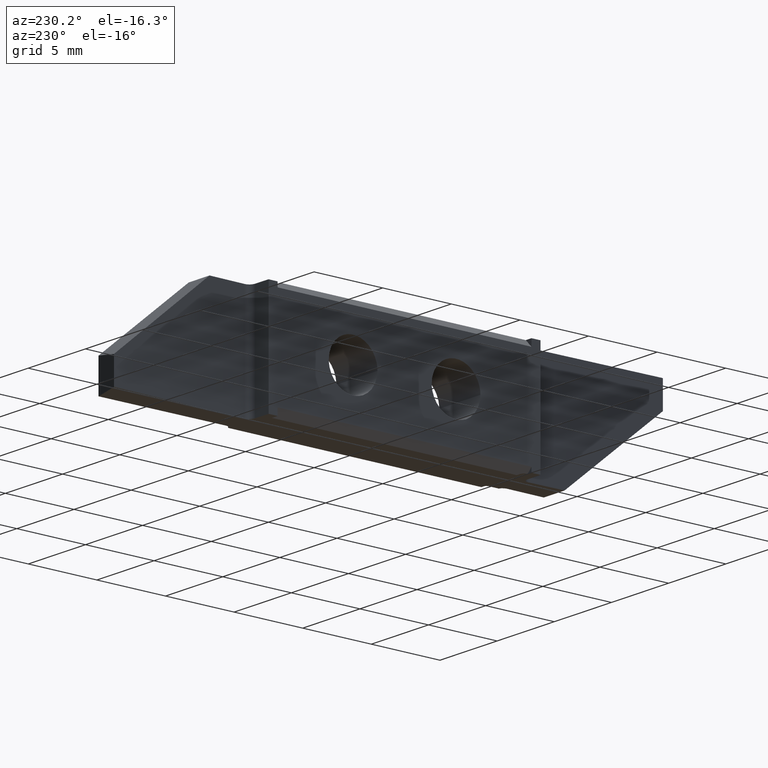
[diagram: clean part render]
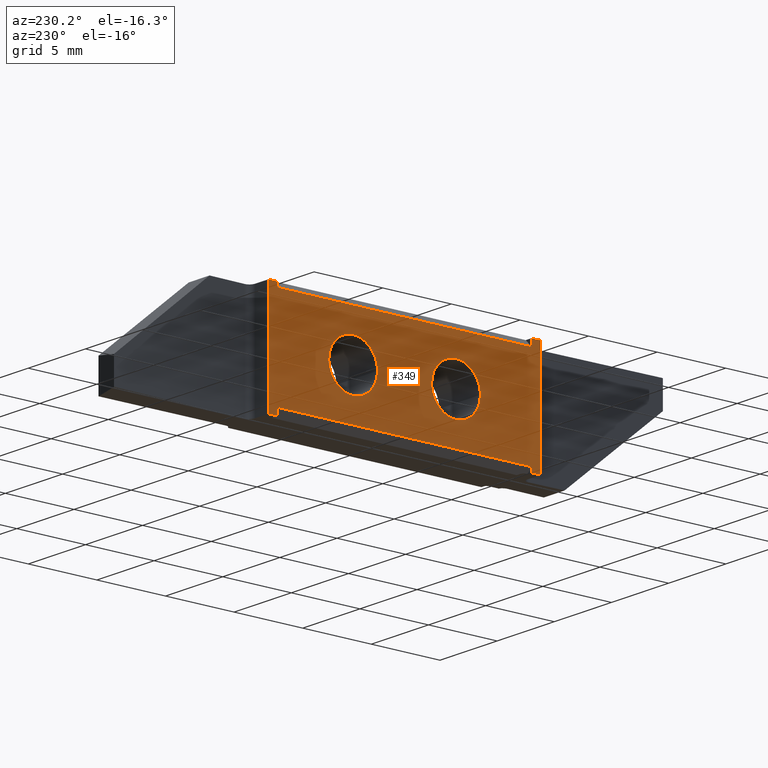
[diagram: same view with one face highlighted and labeled with its STEP entity id]
A machine part, auxiliary view. The second image highlights one B-rep face of the part: STEP entity #349.
In plain terms, the highlighted planar face has unit normal (1, 0, -0).
Its self-contained STEP definition (entity closure, byte-faithful):
#10=CARTESIAN_POINT('',(-3.183503075E-07,9.55,-3.));
#11=VERTEX_POINT('',#10);
#46=CARTESIAN_POINT('',(-3.183503075E-07,13.1,-3.));
#47=VERTEX_POINT('',#46);
#58=CARTESIAN_POINT('',(-3.183503075E-07,13.1,-3.));
#59=CARTESIAN_POINT('',(-1.299930425E-07,13.1,-1.225));
#60=CARTESIAN_POINT('',(-1.299930425E-07,11.325,-1.225));
#61=CARTESIAN_POINT('',(-1.299930425E-07,9.55,-1.225));
#62=CARTESIAN_POINT('',(-3.183503075E-07,9.55,-3.));
#63=(BOUNDED_CURVE()B_SPLINE_CURVE(2,(#58,#59,#60,#61,#62),.UNSPECIFIED.,.F.,.F.)B_SPLINE_CURVE_WITH_KNOTS((3,2,3),(0.,1.570796327,3.141592654),.UNSPECIFIED.)CURVE()GEOMETRIC_REPRESENTATION_ITEM()RATIONAL_B_SPLINE_CURVE((1.,0.7071067812,1.,0.7071067812,1.)
)REPRESENTATION_ITEM(''));
#64=EDGE_CURVE('',#47,#11,#63,.T.);
#85=CARTESIAN_POINT('',(-3.183503079E-07,7.575,-3.));
#86=DIRECTION('',(1.,0.,-1.061167691E-07));
#87=DIRECTION('',(1.061167691E-07,0.,1.));
#88=AXIS2_PLACEMENT_3D('',#85,#86,#87);
#89=PLANE('',#88);
#90=CARTESIAN_POINT('',(-7.268998686E-07,-1.675,-6.85));
#91=DIRECTION('',(1.06116769E-07,5.075305255E-15,1.));
#92=VECTOR('',#91,0.35);
#93=LINE('',#90,#92);
#94=CARTESIAN_POINT('',(-7.268998686E-07,-1.675,-6.85));
#95=VERTEX_POINT('',#94);
#96=CARTESIAN_POINT('',(-6.897589995E-07,-1.675,-6.5));
#97=VERTEX_POINT('',#96);
#98=EDGE_CURVE('',#95,#97,#93,.T.);
#99=ORIENTED_EDGE('Edge 81',*,*,#98,.F.);
#108=CARTESIAN_POINT('',(-6.897589995E-07,-1.675,-6.5));
#109=DIRECTION('',(0.,1.,-3.552713679E-15));
#110=VECTOR('',#109,18.5);
#111=LINE('',#108,#110);
#112=CARTESIAN_POINT('',(-6.897589995E-07,16.825,-6.5));
#113=VERTEX_POINT('',#112);
#114=EDGE_CURVE('',#97,#113,#111,.T.);
#115=ORIENTED_EDGE('Edge 86',*,*,#114,.F.);
#124=CARTESIAN_POINT('',(-7.42817384E-07,16.825,-7.));
#125=DIRECTION('',(1.06116769E-07,7.105427358E-15,1.));
#126=VECTOR('',#125,0.5);
#127=LINE('',#124,#126);
#128=CARTESIAN_POINT('',(-7.42817384E-07,16.825,-7.));
#129=VERTEX_POINT('',#128);
#130=EDGE_CURVE('',#129,#113,#127,.T.);
#131=ORIENTED_EDGE('Edge 91',*,*,#130,.T.);
#140=CARTESIAN_POINT('',(-7.42817384E-07,16.825,-7.));
#141=DIRECTION('',(0.,1.,2.708807625E-14));
#142=VECTOR('',#141,0.6557707615);
#143=LINE('',#140,#142);
#144=CARTESIAN_POINT('',(-7.42817384E-07,17.48077076,-7.));
#145=VERTEX_POINT('',#144);
#146=EDGE_CURVE('',#129,#145,#143,.T.);
#147=ORIENTED_EDGE('Edge 96',*,*,#146,.F.);
#156=CARTESIAN_POINT('',(9.019925277E-08,17.48077076,0.85));
#157=DIRECTION('',(-1.06116769E-07,2.715449946E-15,-1.));
#158=VECTOR('',#157,7.85);
#159=LINE('',#156,#158);
#160=CARTESIAN_POINT('',(9.019925277E-08,17.48077076,0.85));
#161=VERTEX_POINT('',#160);
#162=EDGE_CURVE('',#161,#145,#159,.T.);
#163=ORIENTED_EDGE('Edge 886',*,*,#162,.T.);
#172=CARTESIAN_POINT('',(9.019925277E-08,17.48077076,0.85));
#173=DIRECTION('',(0.,-1.,3.386009532E-15));
#174=VECTOR('',#173,0.6557707615);
#175=LINE('',#172,#174);
#176=CARTESIAN_POINT('',(9.01992528E-08,16.825,0.85));
#177=VERTEX_POINT('',#176);
#178=EDGE_CURVE('',#161,#177,#175,.T.);
#179=ORIENTED_EDGE('Edge 520',*,*,#178,.F.);
#188=CARTESIAN_POINT('',(5.305838364E-08,16.825,0.5));
#189=DIRECTION('',(1.06116769E-07,0.,1.));
#190=VECTOR('',#189,0.35);
#191=LINE('',#188,#190);
#192=CARTESIAN_POINT('',(5.305838364E-08,16.825,0.5));
#193=VERTEX_POINT('',#192);
#194=EDGE_CURVE('',#193,#177,#191,.T.);
#195=ORIENTED_EDGE('Edge 111',*,*,#194,.T.);
#204=CARTESIAN_POINT('',(5.305838364E-08,-1.675,0.5));
#205=DIRECTION('',(0.,1.,-3.552713679E-15));
#206=VECTOR('',#205,18.5);
#207=LINE('',#204,#206);
#208=CARTESIAN_POINT('',(5.305838364E-08,-1.675,0.5));
#209=VERTEX_POINT('',#208);
#210=EDGE_CURVE('',#209,#193,#207,.T.);
#211=ORIENTED_EDGE('Edge 740',*,*,#210,.T.);
#220=CARTESIAN_POINT('',(5.305838364E-08,-1.675,0.5));
#221=DIRECTION('',(1.06116769E-07,3.552713679E-15,1.));
#222=VECTOR('',#221,0.5);
#223=LINE('',#220,#222);
#224=CARTESIAN_POINT('',(1.061167682E-07,-1.675,1.));
#225=VERTEX_POINT('',#224);
#226=EDGE_CURVE('',#209,#225,#223,.T.);
#227=ORIENTED_EDGE('Edge 121',*,*,#226,.F.);
#236=CARTESIAN_POINT('',(1.061167682E-07,-1.675,1.));
#237=DIRECTION('',(0.,-1.,-4.84876565E-13));
#238=VECTOR('',#237,0.6557707615);
#239=LINE('',#236,#238);
#240=CARTESIAN_POINT('',(1.061167681E-07,-2.330770762,1.));
#241=VERTEX_POINT('',#240);
#242=EDGE_CURVE('',#225,#241,#239,.T.);
#243=ORIENTED_EDGE('Edge 126',*,*,#242,.F.);
#252=CARTESIAN_POINT('',(-7.268998687E-07,-2.330770762,-6.85));
#253=DIRECTION('',(1.06116769E-07,-2.715449946E-15,1.));
#254=VECTOR('',#253,7.85);
#255=LINE('',#252,#254);
#256=CARTESIAN_POINT('',(-7.268998686E-07,-2.330770762,-6.85));
#257=VERTEX_POINT('',#256);
#258=EDGE_CURVE('',#257,#241,#255,.T.);
#259=ORIENTED_EDGE('Edge 131',*,*,#258,.T.);
#268=CARTESIAN_POINT('',(-7.268998687E-07,-2.330770762,-6.85));
#269=DIRECTION('',(0.,1.,-2.708807625E-15));
#270=VECTOR('',#269,0.6557707615);
#271=LINE('',#268,#270);
#272=EDGE_CURVE('',#257,#95,#271,.T.);
#273=ORIENTED_EDGE('Edge 136',*,*,#272,.F.);
#282=EDGE_LOOP('',(#273,#259,#243,#227,#211,#195,#179,#163,#147,#131,#115,#99));
#283=FACE_OUTER_BOUND('Loop 137',#282,.T.);
#284=CARTESIAN_POINT('',(-3.183503075E-07,5.6,-3.));
#285=CARTESIAN_POINT('',(-1.299930425E-07,5.6,-1.225));
#286=CARTESIAN_POINT('',(-1.299930425E-07,3.825,-1.225));
#287=CARTESIAN_POINT('',(-1.299930425E-07,2.05,-1.225));
#288=CARTESIAN_POINT('',(-3.183503075E-07,2.05,-3.));
#289=(BOUNDED_CURVE()B_SPLINE_CURVE(2,(#284,#285,#286,#287,#288),.UNSPECIFIED.,.F.,.F.)B_SPLINE_CURVE_WITH_KNOTS((3,2,3),(0.,1.570796327,3.141592654),.UNSPECIFIED.)CURVE()GEOMETRIC_REPRESENTATION_ITEM()RATIONAL_B_SPLINE_CURVE((1.,0.7071067812,1.,0.7071067812
,1.))REPRESENTATION_ITEM(''));
#290=CARTESIAN_POINT('',(-3.183503075E-07,5.6,-3.));
#291=VERTEX_POINT('',#290);
#292=CARTESIAN_POINT('',(-3.183503075E-07,2.05,-3.));
#293=VERTEX_POINT('',#292);
#294=EDGE_CURVE('',#291,#293,#289,.T.);
#295=ORIENTED_EDGE('Edge 142',*,*,#294,.T.);
#304=CARTESIAN_POINT('',(-3.183503075E-07,2.05,-3.));
#305=CARTESIAN_POINT('',(-5.067075725E-07,2.05,-4.775));
#306=CARTESIAN_POINT('',(-5.067075725E-07,3.825,-4.775));
#307=CARTESIAN_POINT('',(-5.067075725E-07,5.6,-4.775));
#308=CARTESIAN_POINT('',(-3.183503075E-07,5.6,-3.));
#309=(BOUNDED_CURVE()B_SPLINE_CURVE(2,(#304,#305,#306,#307,#308),.UNSPECIFIED.,.F.,.F.)B_SPLINE_CURVE_WITH_KNOTS((3,2,3),(0.,1.570796327,3.141592654),.UNSPECIFIED.)CURVE()GEOMETRIC_REPRESENTATION_ITEM()RATIONAL_B_SPLINE_CURVE((1.,0.7071067812,1.,0.7071067812
,1.))REPRESENTATION_ITEM(''));
#310=EDGE_CURVE('',#293,#291,#309,.T.);
#311=ORIENTED_EDGE('Edge 147',*,*,#310,.T.);
#320=EDGE_LOOP('',(#311,#295));
#321=FACE_BOUND('Loop 148',#320,.T.);
#322=ORIENTED_EDGE('Edge 153',*,*,#64,.T.);
#331=CARTESIAN_POINT('',(-3.183503075E-07,9.55,-3.));
#332=CARTESIAN_POINT('',(-5.067075725E-07,9.55,-4.775));
#333=CARTESIAN_POINT('',(-5.067075725E-07,11.325,-4.775));
#334=CARTESIAN_POINT('',(-5.067075725E-07,13.1,-4.775));
#335=CARTESIAN_POINT('',(-3.183503075E-07,13.1,-3.));
#336=(BOUNDED_CURVE()B_SPLINE_CURVE(2,(#331,#332,#333,#334,#335),.UNSPECIFIED.,.F.,.F.)B_SPLINE_CURVE_WITH_KNOTS((3,2,3),(0.,1.570796327,3.141592654),.UNSPECIFIED.)CURVE()GEOMETRIC_REPRESENTATION_ITEM()RATIONAL_B_SPLINE_CURVE((1.,0.7071067812,1.,0.7071067812
,1.))REPRESENTATION_ITEM(''));
#337=EDGE_CURVE('',#11,#47,#336,.T.);
#338=ORIENTED_EDGE('Edge 158',*,*,#337,.T.);
#347=EDGE_LOOP('',(#338,#322));
#348=FACE_BOUND('Loop 159',#347,.T.);
#349=ADVANCED_FACE('Face 160',(#283,#321,#348),#89,.F.);